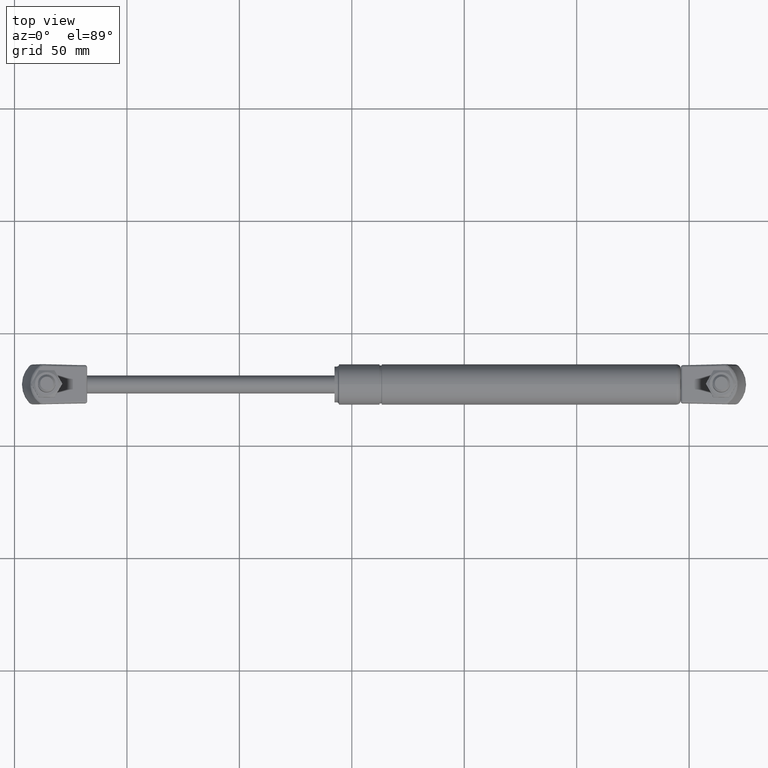
[diagram: clean part render]
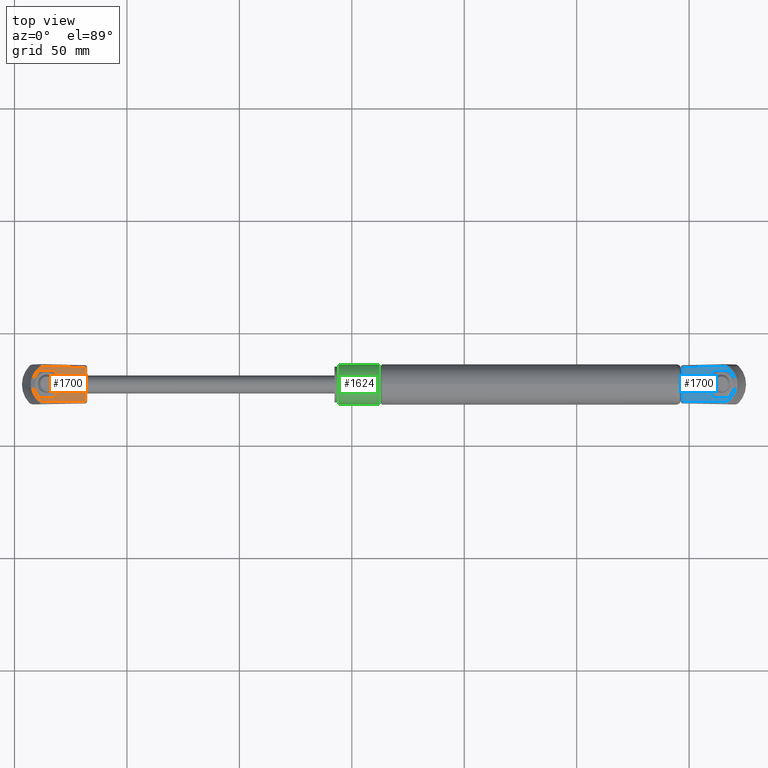
[diagram: same view with three faces highlighted in distinct colors, each labeled with its STEP entity id]
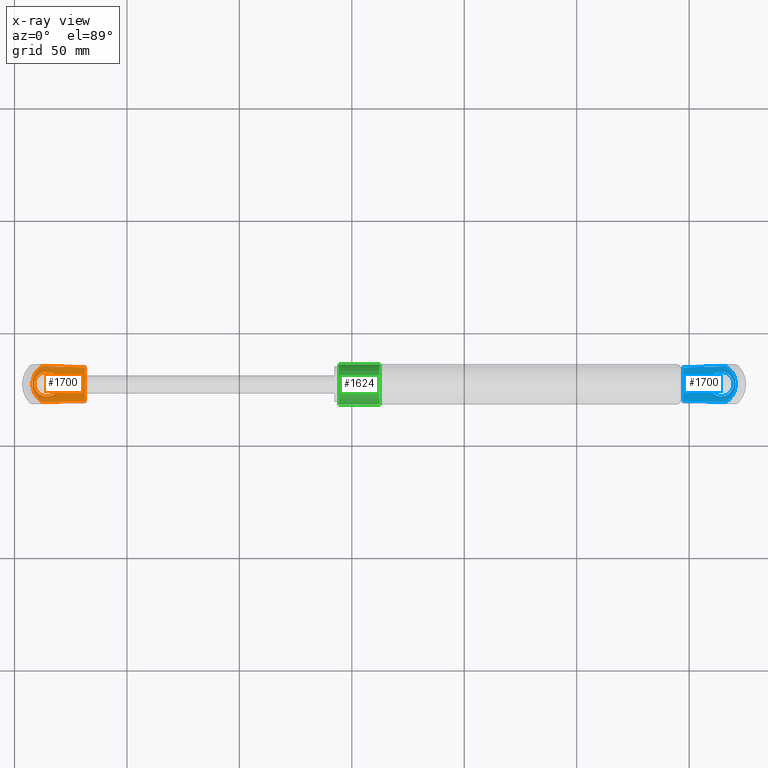
[diagram: x-ray of the same camera — body ghosted, the three highlighted faces saturated]
A machine part, top view with three faces highlighted in distinct colors.
The next image is the same camera in x-ray (body ghosted, the three faces saturated) — at least one of them is partly hidden behind the body in this view.
Their STEP definitions:

[orange] entity #1700 — the highlighted planar face has unit normal (-0, 0, 1).
#93=B_SPLINE_CURVE_WITH_KNOTS('',3,(#2988,#2989,#2990,#2991),
 .UNSPECIFIED.,.F.,.F.,(4,4),(-1.97701431440542,-0.297661428700048),
 .UNSPECIFIED.);
#94=B_SPLINE_CURVE_WITH_KNOTS('',3,(#2993,#2994,#2995,#2996),
 .UNSPECIFIED.,.F.,.F.,(4,4),(0.,0.0841222567430072),.UNSPECIFIED.);
#95=B_SPLINE_CURVE_WITH_KNOTS('',3,(#2998,#2999,#3000,#3001,#3002,#3003,
#3004),.UNSPECIFIED.,.F.,.F.,(4,1,1,1,4),(-1.7673040289075,-1.38859602271304,
-1.00988801651857,-0.504944008259287,0.),.UNSPECIFIED.);
#96=B_SPLINE_CURVE_WITH_KNOTS('',3,(#3006,#3007,#3008,#3009),
 .UNSPECIFIED.,.F.,.F.,(4,4),(0.,0.0841222590975589),.UNSPECIFIED.);
#97=B_SPLINE_CURVE_WITH_KNOTS('',3,(#3011,#3012,#3013,#3014),
 .UNSPECIFIED.,.F.,.F.,(4,4),(-1.67935288570537,-3.07176153101387E-18),
 .UNSPECIFIED.);
#179=LINE('',#2984,#231);
#180=LINE('',#2986,#232);
#181=LINE('',#3015,#233);
#231=VECTOR('',#2265,14.9456095036114);
#232=VECTOR('',#2266,2.);
#233=VECTOR('',#2267,2.);
#360=FACE_BOUND('',#598,.T.);
#444=FACE_OUTER_BOUND('',#597,.T.);
#597=EDGE_LOOP('',(#1380,#1381,#1382,#1383,#1384,#1385,#1386,#1387));
#598=EDGE_LOOP('',(#1388));
#699=CIRCLE('',#1886,5.45);
#828=VERTEX_POINT('',#2974);
#831=VERTEX_POINT('',#2982);
#832=VERTEX_POINT('',#2983);
#833=VERTEX_POINT('',#2985);
#834=VERTEX_POINT('',#2987);
#835=VERTEX_POINT('',#2992);
#836=VERTEX_POINT('',#2997);
#837=VERTEX_POINT('',#3005);
#838=VERTEX_POINT('',#3010);
#1022=EDGE_CURVE('',#828,#828,#699,.T.);
#1025=EDGE_CURVE('',#831,#832,#179,.T.);
#1026=EDGE_CURVE('',#833,#831,#180,.T.);
#1027=EDGE_CURVE('',#834,#833,#93,.T.);
#1028=EDGE_CURVE('',#835,#834,#94,.T.);
#1029=EDGE_CURVE('',#836,#835,#95,.T.);
#1030=EDGE_CURVE('',#837,#836,#96,.T.);
#1031=EDGE_CURVE('',#838,#837,#97,.T.);
#1032=EDGE_CURVE('',#838,#832,#181,.T.);
#1380=ORIENTED_EDGE('',*,*,#1025,.F.);
#1381=ORIENTED_EDGE('',*,*,#1026,.F.);
#1382=ORIENTED_EDGE('',*,*,#1027,.F.);
#1383=ORIENTED_EDGE('',*,*,#1028,.F.);
#1384=ORIENTED_EDGE('',*,*,#1029,.F.);
#1385=ORIENTED_EDGE('',*,*,#1030,.F.);
#1386=ORIENTED_EDGE('',*,*,#1031,.F.);
#1387=ORIENTED_EDGE('',*,*,#1032,.T.);
#1388=ORIENTED_EDGE('',*,*,#1022,.F.);
#1581=PLANE('',#1890);
#1700=ADVANCED_FACE('',(#444,#360),#1581,.T.);
#1886=AXIS2_PLACEMENT_3D('',#2975,#2255,#2256);
#1890=AXIS2_PLACEMENT_3D('',#2981,#2263,#2264);
#2255=DIRECTION('center_axis',(0.,0.,1.));
#2256=DIRECTION('ref_axis',(0.,-1.,0.));
#2263=DIRECTION('center_axis',(0.,0.,1.));
#2264=DIRECTION('ref_axis',(1.,0.,0.));
#2265=DIRECTION('',(-1.,0.,0.));
#2266=DIRECTION('',(0.,-1.,0.));
#2267=DIRECTION('',(0.,-1.,0.));
#2974=CARTESIAN_POINT('',(-6.67432505535308E-16,23.45,0.));
#2975=CARTESIAN_POINT('Origin',(0.,18.,0.));
#2981=CARTESIAN_POINT('Origin',(-2.77555756156289E-16,11.3852382178936,
0.));
#2982=CARTESIAN_POINT('',(7.47280475180569,1.,6.93889390390723E-17));
#2983=CARTESIAN_POINT('',(-7.47280475180569,1.,6.93889390390723E-17));
#2984=CARTESIAN_POINT('',(-4.2,1.,0.));
#2985=CARTESIAN_POINT('',(7.47251033998515,3.,0.));
#2986=CARTESIAN_POINT('',(7.47251033998515,3.,0.));
#2987=CARTESIAN_POINT('',(7.87985666578797,19.7885878036802,0.));
#2988=CARTESIAN_POINT('Ctrl Pts',(7.87985666578797,19.7885878036802,-2.77555756156289E-16));
#2989=CARTESIAN_POINT('Ctrl Pts',(7.74409814621856,14.1923912968058,-2.6830944927425E-16));
#2990=CARTESIAN_POINT('Ctrl Pts',(7.60831605627929,8.59619536172658,1.24973283014069E-17));
#2991=CARTESIAN_POINT('Ctrl Pts',(7.47251033998516,3.,0.));
#2992=CARTESIAN_POINT('',(7.63478807929735,20.5771221156284,0.));
#2993=CARTESIAN_POINT('Ctrl Pts',(7.63478807929735,20.5771221156284,0.));
#2994=CARTESIAN_POINT('Ctrl Pts',(7.80369921637771,20.3532976164517,0.));
#2995=CARTESIAN_POINT('Ctrl Pts',(7.88665709060367,20.0689128523002,0.));
#2996=CARTESIAN_POINT('Ctrl Pts',(7.87985666578797,19.7885878036802,0.));
#2997=CARTESIAN_POINT('',(-7.63478807929739,20.5771221156284,0.));
#2998=CARTESIAN_POINT('Ctrl Pts',(-7.63478807929739,20.5771221156284,1.76941794549634E-15));
#2999=CARTESIAN_POINT('Ctrl Pts',(-6.87437100985091,21.5847523564536,1.92554305833426E-15));
#3000=CARTESIAN_POINT('Ctrl Pts',(-4.94677385479602,23.2912220558745,6.39495782554475E-16));
#3001=CARTESIAN_POINT('Ctrl Pts',(-0.886011261317596,24.6799246544443,1.4818951925304E-15));
#3002=CARTESIAN_POINT('Ctrl Pts',(3.8642418351031,24.0544506492069,1.83950749415608E-16));
#3003=CARTESIAN_POINT('Ctrl Pts',(6.62089865336407,21.9206291033996,3.33934269125535E-15));
#3004=CARTESIAN_POINT('Ctrl Pts',(7.63478807929359,20.5771221156334,2.77555756156289E-15));
#3005=CARTESIAN_POINT('',(-7.87985666578797,19.7885878036801,0.));
#3006=CARTESIAN_POINT('Ctrl Pts',(-7.87985666578797,19.7885878036801,0.));
#3007=CARTESIAN_POINT('Ctrl Pts',(-7.88665709079401,20.0689128601464,0.));
#3008=CARTESIAN_POINT('Ctrl Pts',(-7.80369922110548,20.3532976101869,0.));
#3009=CARTESIAN_POINT('Ctrl Pts',(-7.63478807929738,20.5771221156284,0.));
#3010=CARTESIAN_POINT('',(-7.47251033998515,3.,0.));
#3011=CARTESIAN_POINT('Ctrl Pts',(-7.47251033998516,3.,0.));
#3012=CARTESIAN_POINT('Ctrl Pts',(-7.60831605627929,8.59619536172658,1.15019967367506E-17));
#3013=CARTESIAN_POINT('Ctrl Pts',(-7.74409814621856,14.1923912968058,-4.29441119791371E-16));
#3014=CARTESIAN_POINT('Ctrl Pts',(-7.87985666578797,19.7885878036801,-4.16333634234434E-16));
#3015=CARTESIAN_POINT('',(-7.47251033998515,3.,0.));

[blue] entity #1700 — the highlighted planar face has unit normal (0, 0, 1).
#93=B_SPLINE_CURVE_WITH_KNOTS('',3,(#2988,#2989,#2990,#2991),
 .UNSPECIFIED.,.F.,.F.,(4,4),(-1.97701431440542,-0.297661428700048),
 .UNSPECIFIED.);
#94=B_SPLINE_CURVE_WITH_KNOTS('',3,(#2993,#2994,#2995,#2996),
 .UNSPECIFIED.,.F.,.F.,(4,4),(0.,0.0841222567430072),.UNSPECIFIED.);
#95=B_SPLINE_CURVE_WITH_KNOTS('',3,(#2998,#2999,#3000,#3001,#3002,#3003,
#3004),.UNSPECIFIED.,.F.,.F.,(4,1,1,1,4),(-1.7673040289075,-1.38859602271304,
-1.00988801651857,-0.504944008259287,0.),.UNSPECIFIED.);
#96=B_SPLINE_CURVE_WITH_KNOTS('',3,(#3006,#3007,#3008,#3009),
 .UNSPECIFIED.,.F.,.F.,(4,4),(0.,0.0841222590975589),.UNSPECIFIED.);
#97=B_SPLINE_CURVE_WITH_KNOTS('',3,(#3011,#3012,#3013,#3014),
 .UNSPECIFIED.,.F.,.F.,(4,4),(-1.67935288570537,-3.07176153101387E-18),
 .UNSPECIFIED.);
#179=LINE('',#2984,#231);
#180=LINE('',#2986,#232);
#181=LINE('',#3015,#233);
#231=VECTOR('',#2265,14.9456095036114);
#232=VECTOR('',#2266,2.);
#233=VECTOR('',#2267,2.);
#360=FACE_BOUND('',#598,.T.);
#444=FACE_OUTER_BOUND('',#597,.T.);
#597=EDGE_LOOP('',(#1380,#1381,#1382,#1383,#1384,#1385,#1386,#1387));
#598=EDGE_LOOP('',(#1388));
#699=CIRCLE('',#1886,5.45);
#828=VERTEX_POINT('',#2974);
#831=VERTEX_POINT('',#2982);
#832=VERTEX_POINT('',#2983);
#833=VERTEX_POINT('',#2985);
#834=VERTEX_POINT('',#2987);
#835=VERTEX_POINT('',#2992);
#836=VERTEX_POINT('',#2997);
#837=VERTEX_POINT('',#3005);
#838=VERTEX_POINT('',#3010);
#1022=EDGE_CURVE('',#828,#828,#699,.T.);
#1025=EDGE_CURVE('',#831,#832,#179,.T.);
#1026=EDGE_CURVE('',#833,#831,#180,.T.);
#1027=EDGE_CURVE('',#834,#833,#93,.T.);
#1028=EDGE_CURVE('',#835,#834,#94,.T.);
#1029=EDGE_CURVE('',#836,#835,#95,.T.);
#1030=EDGE_CURVE('',#837,#836,#96,.T.);
#1031=EDGE_CURVE('',#838,#837,#97,.T.);
#1032=EDGE_CURVE('',#838,#832,#181,.T.);
#1380=ORIENTED_EDGE('',*,*,#1025,.F.);
#1381=ORIENTED_EDGE('',*,*,#1026,.F.);
#1382=ORIENTED_EDGE('',*,*,#1027,.F.);
#1383=ORIENTED_EDGE('',*,*,#1028,.F.);
#1384=ORIENTED_EDGE('',*,*,#1029,.F.);
#1385=ORIENTED_EDGE('',*,*,#1030,.F.);
#1386=ORIENTED_EDGE('',*,*,#1031,.F.);
#1387=ORIENTED_EDGE('',*,*,#1032,.T.);
#1388=ORIENTED_EDGE('',*,*,#1022,.F.);
#1581=PLANE('',#1890);
#1700=ADVANCED_FACE('',(#444,#360),#1581,.T.);
#1886=AXIS2_PLACEMENT_3D('',#2975,#2255,#2256);
#1890=AXIS2_PLACEMENT_3D('',#2981,#2263,#2264);
#2255=DIRECTION('center_axis',(0.,0.,1.));
#2256=DIRECTION('ref_axis',(0.,-1.,0.));
#2263=DIRECTION('center_axis',(0.,0.,1.));
#2264=DIRECTION('ref_axis',(1.,0.,0.));
#2265=DIRECTION('',(-1.,0.,0.));
#2266=DIRECTION('',(0.,-1.,0.));
#2267=DIRECTION('',(0.,-1.,0.));
#2974=CARTESIAN_POINT('',(-6.67432505535308E-16,23.45,0.));
#2975=CARTESIAN_POINT('Origin',(0.,18.,0.));
#2981=CARTESIAN_POINT('Origin',(-2.77555756156289E-16,11.3852382178936,
0.));
#2982=CARTESIAN_POINT('',(7.47280475180569,1.,6.93889390390723E-17));
#2983=CARTESIAN_POINT('',(-7.47280475180569,1.,6.93889390390723E-17));
#2984=CARTESIAN_POINT('',(-4.2,1.,0.));
#2985=CARTESIAN_POINT('',(7.47251033998515,3.,0.));
#2986=CARTESIAN_POINT('',(7.47251033998515,3.,0.));
#2987=CARTESIAN_POINT('',(7.87985666578797,19.7885878036802,0.));
#2988=CARTESIAN_POINT('Ctrl Pts',(7.87985666578797,19.7885878036802,-2.77555756156289E-16));
#2989=CARTESIAN_POINT('Ctrl Pts',(7.74409814621856,14.1923912968058,-2.6830944927425E-16));
#2990=CARTESIAN_POINT('Ctrl Pts',(7.60831605627929,8.59619536172658,1.24973283014069E-17));
#2991=CARTESIAN_POINT('Ctrl Pts',(7.47251033998516,3.,0.));
#2992=CARTESIAN_POINT('',(7.63478807929735,20.5771221156284,0.));
#2993=CARTESIAN_POINT('Ctrl Pts',(7.63478807929735,20.5771221156284,0.));
#2994=CARTESIAN_POINT('Ctrl Pts',(7.80369921637771,20.3532976164517,0.));
#2995=CARTESIAN_POINT('Ctrl Pts',(7.88665709060367,20.0689128523002,0.));
#2996=CARTESIAN_POINT('Ctrl Pts',(7.87985666578797,19.7885878036802,0.));
#2997=CARTESIAN_POINT('',(-7.63478807929739,20.5771221156284,0.));
#2998=CARTESIAN_POINT('Ctrl Pts',(-7.63478807929739,20.5771221156284,1.76941794549634E-15));
#2999=CARTESIAN_POINT('Ctrl Pts',(-6.87437100985091,21.5847523564536,1.92554305833426E-15));
#3000=CARTESIAN_POINT('Ctrl Pts',(-4.94677385479602,23.2912220558745,6.39495782554475E-16));
#3001=CARTESIAN_POINT('Ctrl Pts',(-0.886011261317596,24.6799246544443,1.4818951925304E-15));
#3002=CARTESIAN_POINT('Ctrl Pts',(3.8642418351031,24.0544506492069,1.83950749415608E-16));
#3003=CARTESIAN_POINT('Ctrl Pts',(6.62089865336407,21.9206291033996,3.33934269125535E-15));
#3004=CARTESIAN_POINT('Ctrl Pts',(7.63478807929359,20.5771221156334,2.77555756156289E-15));
#3005=CARTESIAN_POINT('',(-7.87985666578797,19.7885878036801,0.));
#3006=CARTESIAN_POINT('Ctrl Pts',(-7.87985666578797,19.7885878036801,0.));
#3007=CARTESIAN_POINT('Ctrl Pts',(-7.88665709079401,20.0689128601464,0.));
#3008=CARTESIAN_POINT('Ctrl Pts',(-7.80369922110548,20.3532976101869,0.));
#3009=CARTESIAN_POINT('Ctrl Pts',(-7.63478807929738,20.5771221156284,0.));
#3010=CARTESIAN_POINT('',(-7.47251033998515,3.,0.));
#3011=CARTESIAN_POINT('Ctrl Pts',(-7.47251033998516,3.,0.));
#3012=CARTESIAN_POINT('Ctrl Pts',(-7.60831605627929,8.59619536172658,1.15019967367506E-17));
#3013=CARTESIAN_POINT('Ctrl Pts',(-7.74409814621856,14.1923912968058,-4.29441119791371E-16));
#3014=CARTESIAN_POINT('Ctrl Pts',(-7.87985666578797,19.7885878036801,-4.16333634234434E-16));
#3015=CARTESIAN_POINT('',(-7.47251033998515,3.,0.));

[green] entity #1624 — the highlighted cylindrical surface (bore or boss wall) has radius 9 mm, axis along (1, 0, -0).
#294=CYLINDRICAL_SURFACE('',#1751,9.00000000000001);
#326=FACE_BOUND('',#489,.T.);
#369=FACE_OUTER_BOUND('',#488,.T.);
#488=EDGE_LOOP('',(#1106));
#489=EDGE_LOOP('',(#1107));
#640=CIRCLE('',#1750,9.00000000000001);
#641=CIRCLE('',#1752,9.00000000000003);
#720=VERTEX_POINT('',#2359);
#721=VERTEX_POINT('',#2362);
#878=EDGE_CURVE('',#720,#720,#640,.T.);
#879=EDGE_CURVE('',#721,#721,#641,.T.);
#1106=ORIENTED_EDGE('',*,*,#879,.T.);
#1107=ORIENTED_EDGE('',*,*,#878,.T.);
#1624=ADVANCED_FACE('',(#369,#326),#294,.T.);
#1750=AXIS2_PLACEMENT_3D('',#2360,#1945,#1946);
#1751=AXIS2_PLACEMENT_3D('',#2361,#1947,#1948);
#1752=AXIS2_PLACEMENT_3D('',#2363,#1949,#1950);
#1945=DIRECTION('center_axis',(-1.,0.,1.20871055100319E-16));
#1946=DIRECTION('ref_axis',(1.22464679914735E-16,0.,1.));
#1947=DIRECTION('center_axis',(1.,0.,-1.22464679914735E-16));
#1948=DIRECTION('ref_axis',(1.22464679914735E-16,0.,1.));
#1949=DIRECTION('center_axis',(1.,0.,-1.22464679914735E-16));
#1950=DIRECTION('ref_axis',(1.22464679914735E-16,0.,1.));
#2359=CARTESIAN_POINT('',(20.,-1.10218211923262E-15,-9.00000000000002));
#2360=CARTESIAN_POINT('Origin',(20.,0.,-2.44929359829471E-15));
#2361=CARTESIAN_POINT('Origin',(77.9999999999999,0.,-9.55224503334935E-15));
#2362=CARTESIAN_POINT('',(1.99999999999989,0.,9.00000000000003));
#2363=CARTESIAN_POINT('Origin',(1.99999999999989,0.,-2.44929359829457E-16));